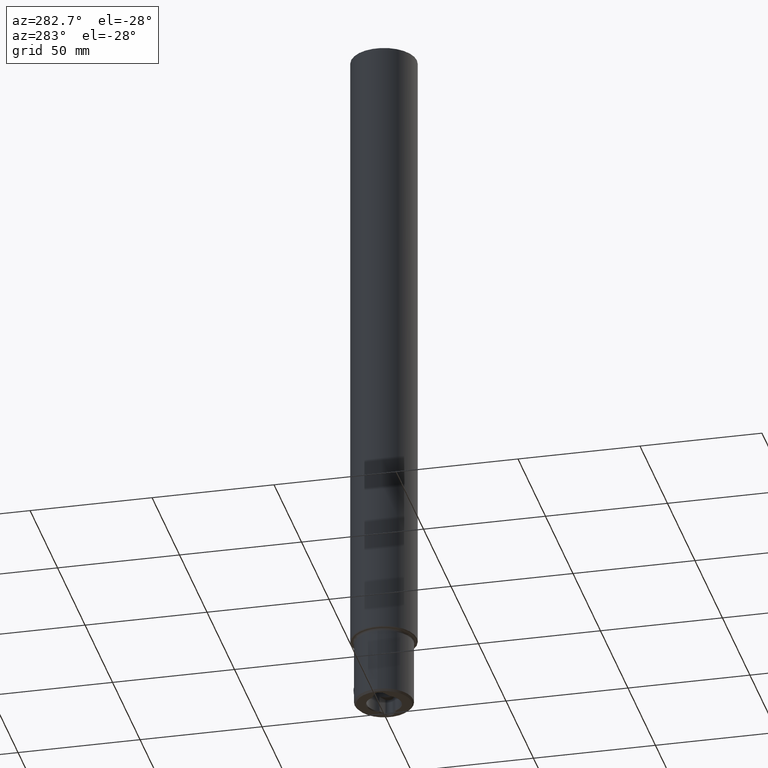
[diagram: clean part render]
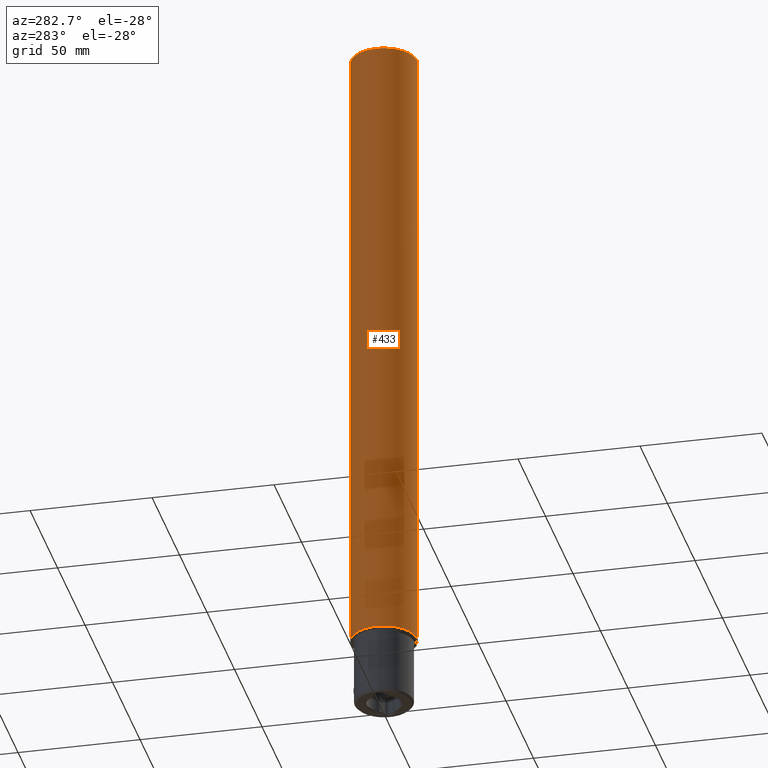
[diagram: same view with one face highlighted and labeled with its STEP entity id]
A machine part, auxiliary view. The second image highlights one B-rep face of the part: STEP entity #433.
In plain terms, the highlighted cylindrical surface (edge-blend (fillet) strip) has radius 13.5 mm, axis along (-0, 0, -1).
Its self-contained STEP definition (entity closure, byte-faithful):
#409=VERTEX_POINT('NONE',#1164);
#411=VERTEX_POINT('NONE',#1166);
#433=ADVANCED_FACE('NONE',(#1192),#1193,.T.);
#547=EDGE_CURVE('NONE',#813,#865,#1319,.T.);
#607=EDGE_CURVE('NONE',#813,#411,#1385,.T.);
#645=EDGE_CURVE('NONE',#411,#409,#1429,.T.);
#761=EDGE_CURVE('NONE',#865,#409,#1551,.T.);
#813=VERTEX_POINT('NONE',#1612);
#865=VERTEX_POINT('NONE',#1669);
#1164=CARTESIAN_POINT('',(-1.65327317884893E-015,13.5,28.3));
#1166=CARTESIAN_POINT('',(-1.65327317884892E-015,13.5,290.0));
#1192=FACE_OUTER_BOUND('',#2036,.T.);
#1193=CYLINDRICAL_SURFACE('',#2037,13.5);
#1319=LINE('',#2237,#2238);
#1385=CIRCLE('',#2353,13.5);
#1429=LINE('',#2426,#2427);
#1551=CIRCLE('',#2603,13.5);
#1612=CARTESIAN_POINT('',(3.30649175650915E-015,-13.5000000000001,290.0));
#1669=CARTESIAN_POINT('',(3.30649175650914E-015,-13.5,28.3));
#2036=EDGE_LOOP('',(#3304,#3305,#3306,#3307));
#2037=AXIS2_PLACEMENT_3D('',#3308,#3309,#3310);
#2237=CARTESIAN_POINT('',(3.30649175650914E-015,-13.5,-2.43052827500041E-015));
#2238=VECTOR('',#3457,1000.0);
#2353=AXIS2_PLACEMENT_3D('',#3532,#3533,#3534);
#2426=CARTESIAN_POINT('',(-1.65327317884893E-015,13.5,2.43052827500041E-015));
#2427=VECTOR('',#3597,1000.0);
#2603=AXIS2_PLACEMENT_3D('',#3705,#3706,#3707);
#3304=ORIENTED_EDGE('',*,*,#547,.F.);
#3305=ORIENTED_EDGE('',*,*,#607,.T.);
#3306=ORIENTED_EDGE('',*,*,#645,.T.);
#3307=ORIENTED_EDGE('',*,*,#761,.F.);
#3308=CARTESIAN_POINT('',(0.0,0.0,0.0));
#3309=DIRECTION('',(-2.20484346090103E-032,1.80039131481512E-016,-1.0));
#3310=DIRECTION('',(-1.22464679914735E-016,1.0,1.80039131481512E-016));
#3457=DIRECTION('',(-2.20484346090103E-032,1.80039131481512E-016,-1.0));
#3532=CARTESIAN_POINT('',(6.39404603661298E-030,-5.22113481296384E-014,290.0));
#3533=DIRECTION('',(0.0,0.0,-1.0));
#3534=DIRECTION('',(-1.22464679914735E-016,1.0,0.0));
#3597=DIRECTION('',(-2.20484346090103E-032,1.80039131481512E-016,-1.0));
#3705=CARTESIAN_POINT('',(6.23970699434991E-031,-5.09510742092679E-015,28.3));
#3706=DIRECTION('',(-3.14729415149743E-032,2.56996070515082E-016,-1.0));
#3707=DIRECTION('',(-1.22464679914735E-016,1.0,2.56996070515082E-016));